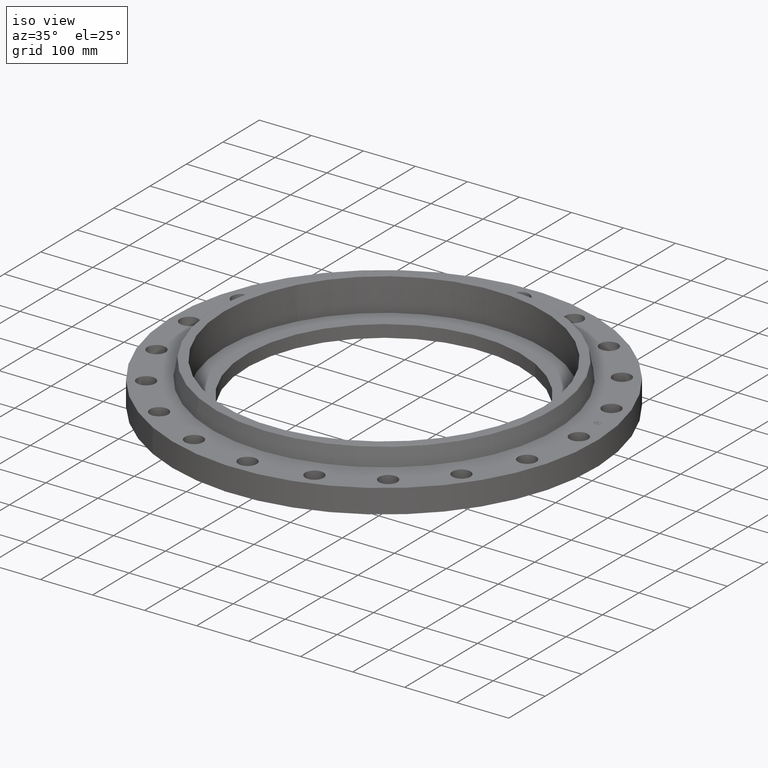
[diagram: clean part render]
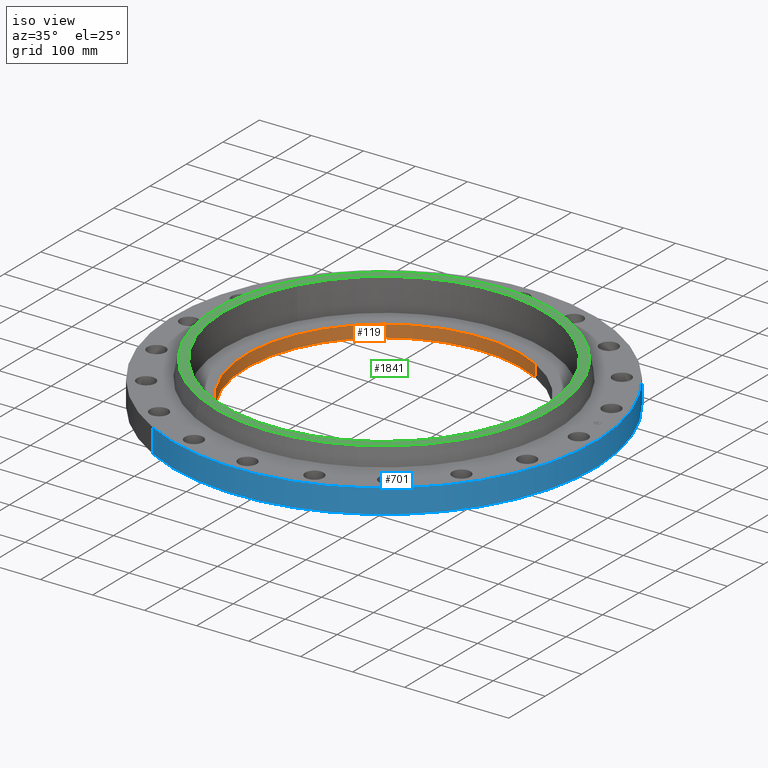
[diagram: same view with three faces highlighted in distinct colors, each labeled with its STEP entity id]
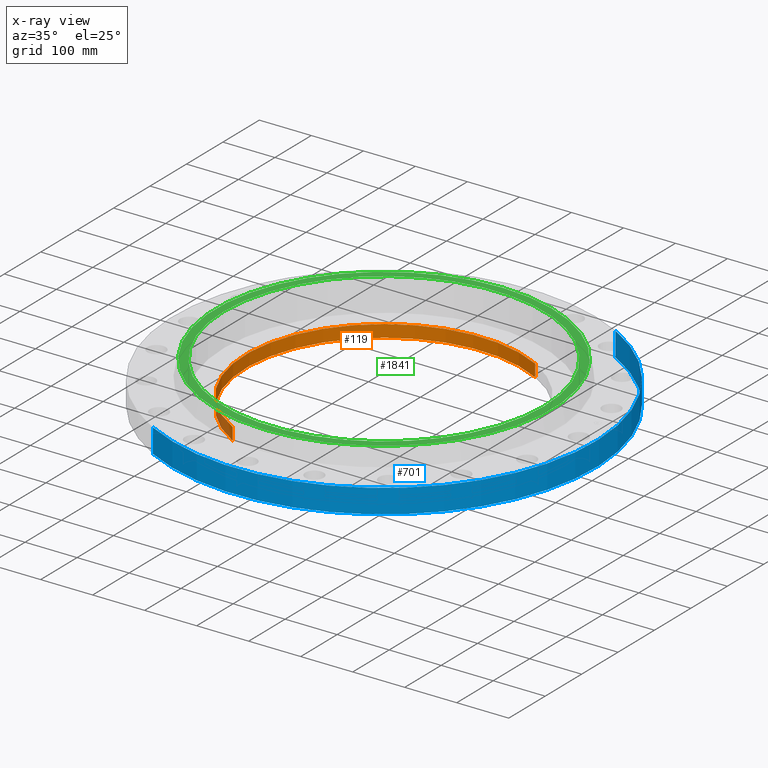
[diagram: x-ray of the same camera — body ghosted, the three highlighted faces saturated]
A machine part, iso view with three faces highlighted in distinct colors.
The next image is the same camera in x-ray (body ghosted, the three faces saturated) — at least one of them is partly hidden behind the body in this view.
Their STEP definitions:

[orange] entity #119 — the highlighted cylindrical surface (partial cylindrical patch) has radius 265.913 mm, axis along (0, 0, -1).
#60=AXIS2_PLACEMENT_3D('Circle Axis2P3D',#58,#59,$) ;
#80=AXIS2_PLACEMENT_3D('Cylinder Axis2P3D',#77,#78,#79) ;
#110=AXIS2_PLACEMENT_3D('Circle Axis2P3D',#108,#109,$) ;
#58=CARTESIAN_POINT('Axis2P3D Location',(3.46179777757E-015,1.32877086412E-015,0.690000000003)) ;
#62=CARTESIAN_POINT('Vertex',(-5.01910596367,-9.18741184047,0.690000000003)) ;
#64=CARTESIAN_POINT('Vertex',(5.01910596367,9.18741184047,0.690000000003)) ;
#77=CARTESIAN_POINT('Axis2P3D Location',(0.,0.,1.47000000001)) ;
#82=CARTESIAN_POINT('Line Origine',(5.01910596367,9.18741184047,0.220000000001)) ;
#86=CARTESIAN_POINT('Vertex',(5.01910596367,9.18741184047,-0.250000000001)) ;
#93=CARTESIAN_POINT('Vertex',(-5.01910596367,-9.18741184047,-0.250000000001)) ;
#96=CARTESIAN_POINT('Line Origine',(-5.01910596367,-9.18741184047,0.220000000001)) ;
#108=CARTESIAN_POINT('Axis2P3D Location',(0.,0.,-0.250000000001)) ;
#59=DIRECTION('Axis2P3D Direction',(0.,0.,-0.0393700787402)) ;
#78=DIRECTION('Axis2P3D Direction',(0.,0.,-0.0393700787402)) ;
#79=DIRECTION('Axis2P3D XDirection',(-0.0188750212049,-0.0345504945626,0.)) ;
#83=DIRECTION('Vector Direction',(0.,0.,-0.0393700787402)) ;
#97=DIRECTION('Vector Direction',(0.,0.,-0.0393700787402)) ;
#109=DIRECTION('Axis2P3D Direction',(0.,0.,-0.0393700787402)) ;
#84=VECTOR('Line Direction',#83,0.0393700787402) ;
#98=VECTOR('Line Direction',#97,0.0393700787402) ;
#114=ORIENTED_EDGE('',*,*,#100,.T.) ;
#115=ORIENTED_EDGE('',*,*,#112,.T.) ;
#116=ORIENTED_EDGE('',*,*,#88,.F.) ;
#117=ORIENTED_EDGE('',*,*,#66,.F.) ;
#119=ADVANCED_FACE('PartBody',(#118),#81,.F.) ;
#61=CIRCLE('generated circle',#60,10.469) ;
#111=CIRCLE('generated circle',#110,10.469) ;
#81=CYLINDRICAL_SURFACE('generated cylinder',#80,10.469) ;
#66=EDGE_CURVE('',#63,#65,#61,.T.) ;
#88=EDGE_CURVE('',#65,#87,#85,.T.) ;
#100=EDGE_CURVE('',#63,#94,#99,.T.) ;
#112=EDGE_CURVE('',#94,#87,#111,.T.) ;
#113=EDGE_LOOP('',(#114,#115,#116,#117)) ;
#118=FACE_OUTER_BOUND('',#113,.T.) ;
#85=LINE('Line',#82,#84) ;
#99=LINE('Line',#96,#98) ;
#63=VERTEX_POINT('',#62) ;
#65=VERTEX_POINT('',#64) ;
#87=VERTEX_POINT('',#86) ;
#94=VERTEX_POINT('',#93) ;

[blue] entity #701 — the highlighted cylindrical surface (partial cylindrical patch) has radius 406.4 mm, axis along (0, 0, -1).
#287=AXIS2_PLACEMENT_3D('Circle Axis2P3D',#285,#286,$) ;
#662=AXIS2_PLACEMENT_3D('Cylinder Axis2P3D',#659,#660,#661) ;
#692=AXIS2_PLACEMENT_3D('Circle Axis2P3D',#690,#691,$) ;
#280=CARTESIAN_POINT('Vertex',(-7.6708086177,-14.0413209903,1.67844740731E-015)) ;
#282=CARTESIAN_POINT('Vertex',(7.6708086177,14.0413209903,1.67844740731E-015)) ;
#285=CARTESIAN_POINT('Axis2P3D Location',(0.,0.,0.)) ;
#659=CARTESIAN_POINT('Axis2P3D Location',(0.,0.,1.47000000001)) ;
#664=CARTESIAN_POINT('Line Origine',(-7.6708086177,-14.0413209903,0.905000000004)) ;
#668=CARTESIAN_POINT('Vertex',(-7.6708086177,-14.0413209903,1.81000000001)) ;
#675=CARTESIAN_POINT('Vertex',(7.6708086177,14.0413209903,1.81000000001)) ;
#678=CARTESIAN_POINT('Line Origine',(7.6708086177,14.0413209903,0.905000000004)) ;
#690=CARTESIAN_POINT('Axis2P3D Location',(0.,0.,1.81000000001)) ;
#286=DIRECTION('Axis2P3D Direction',(0.,0.,-0.0393700787402)) ;
#660=DIRECTION('Axis2P3D Direction',(0.,0.,-0.0393700787402)) ;
#661=DIRECTION('Axis2P3D XDirection',(0.0188750212049,0.0345504945626,0.)) ;
#665=DIRECTION('Vector Direction',(0.,0.,-0.0393700787402)) ;
#679=DIRECTION('Vector Direction',(0.,0.,-0.0393700787402)) ;
#691=DIRECTION('Axis2P3D Direction',(0.,0.,-0.0393700787402)) ;
#666=VECTOR('Line Direction',#665,0.0393700787402) ;
#680=VECTOR('Line Direction',#679,0.0393700787402) ;
#696=ORIENTED_EDGE('',*,*,#289,.F.) ;
#697=ORIENTED_EDGE('',*,*,#682,.T.) ;
#698=ORIENTED_EDGE('',*,*,#694,.T.) ;
#699=ORIENTED_EDGE('',*,*,#670,.F.) ;
#701=ADVANCED_FACE('PartBody',(#700),#663,.T.) ;
#288=CIRCLE('generated circle',#287,16.0000000001) ;
#693=CIRCLE('generated circle',#692,16.0000000001) ;
#663=CYLINDRICAL_SURFACE('generated cylinder',#662,16.0000000001) ;
#289=EDGE_CURVE('',#283,#281,#288,.T.) ;
#670=EDGE_CURVE('',#281,#669,#667,.F.) ;
#682=EDGE_CURVE('',#283,#676,#681,.F.) ;
#694=EDGE_CURVE('',#676,#669,#693,.T.) ;
#695=EDGE_LOOP('',(#696,#697,#698,#699)) ;
#700=FACE_OUTER_BOUND('',#695,.T.) ;
#667=LINE('Line',#664,#666) ;
#681=LINE('Line',#678,#680) ;
#281=VERTEX_POINT('',#280) ;
#283=VERTEX_POINT('',#282) ;
#669=VERTEX_POINT('',#668) ;
#676=VERTEX_POINT('',#675) ;

[green] entity #1841 — the highlighted planar face has unit normal (0, 0, -1).
#1762=AXIS2_PLACEMENT_3D('Circle Axis2P3D',#1760,#1761,$) ;
#1781=AXIS2_PLACEMENT_3D('Circle Axis2P3D',#1779,#1780,$) ;
#1817=AXIS2_PLACEMENT_3D('Plane Axis2P3D',#1814,#1815,#1816) ;
#1825=AXIS2_PLACEMENT_3D('Circle Axis2P3D',#1823,#1824,$) ;
#1834=AXIS2_PLACEMENT_3D('Circle Axis2P3D',#1832,#1833,$) ;
#1757=CARTESIAN_POINT('Vertex',(6.12050117902,11.2035022589,3.19000000001)) ;
#1760=CARTESIAN_POINT('Axis2P3D Location',(0.,0.,3.19000000001)) ;
#1764=CARTESIAN_POINT('Vertex',(-6.12050117902,-11.2035022589,3.19000000001)) ;
#1779=CARTESIAN_POINT('Axis2P3D Location',(0.,0.,3.19000000001)) ;
#1814=CARTESIAN_POINT('Axis2P3D Location',(0.,12.7663227888,3.19000000001)) ;
#1823=CARTESIAN_POINT('Axis2P3D Location',(2.79741234551E-016,0.,3.19000000001)) ;
#1827=CARTESIAN_POINT('Vertex',(-10.640688563,5.8130346556,3.19000000001)) ;
#1829=CARTESIAN_POINT('Vertex',(10.640688563,-5.8130346556,3.19000000001)) ;
#1832=CARTESIAN_POINT('Axis2P3D Location',(-5.59482469102E-016,0.,3.19000000001)) ;
#1761=DIRECTION('Axis2P3D Direction',(0.,0.,-0.0393700787402)) ;
#1780=DIRECTION('Axis2P3D Direction',(0.,0.,-0.0393700787402)) ;
#1815=DIRECTION('Axis2P3D Direction',(0.,0.,-0.0393700787402)) ;
#1816=DIRECTION('Axis2P3D XDirection',(0.0393700787402,0.,0.)) ;
#1824=DIRECTION('Axis2P3D Direction',(0.,0.,-0.0393700787402)) ;
#1833=DIRECTION('Axis2P3D Direction',(0.,0.,-0.0393700787402)) ;
#1820=ORIENTED_EDGE('',*,*,#1766,.F.) ;
#1821=ORIENTED_EDGE('',*,*,#1783,.F.) ;
#1838=ORIENTED_EDGE('',*,*,#1831,.T.) ;
#1839=ORIENTED_EDGE('',*,*,#1836,.T.) ;
#1840=FACE_BOUND('',#1837,.T.) ;
#1841=ADVANCED_FACE('PartBody',(#1822,#1840),#1818,.F.) ;
#1763=CIRCLE('generated circle',#1762,12.7663227888) ;
#1782=CIRCLE('generated circle',#1781,12.7663227888) ;
#1826=CIRCLE('generated circle',#1825,12.125) ;
#1835=CIRCLE('generated circle',#1834,12.125) ;
#1766=EDGE_CURVE('',#1758,#1765,#1763,.T.) ;
#1783=EDGE_CURVE('',#1765,#1758,#1782,.T.) ;
#1831=EDGE_CURVE('',#1828,#1830,#1826,.T.) ;
#1836=EDGE_CURVE('',#1830,#1828,#1835,.T.) ;
#1819=EDGE_LOOP('',(#1820,#1821)) ;
#1837=EDGE_LOOP('',(#1838,#1839)) ;
#1822=FACE_OUTER_BOUND('',#1819,.T.) ;
#1818=PLANE('',#1817) ;
#1758=VERTEX_POINT('',#1757) ;
#1765=VERTEX_POINT('',#1764) ;
#1828=VERTEX_POINT('',#1827) ;
#1830=VERTEX_POINT('',#1829) ;